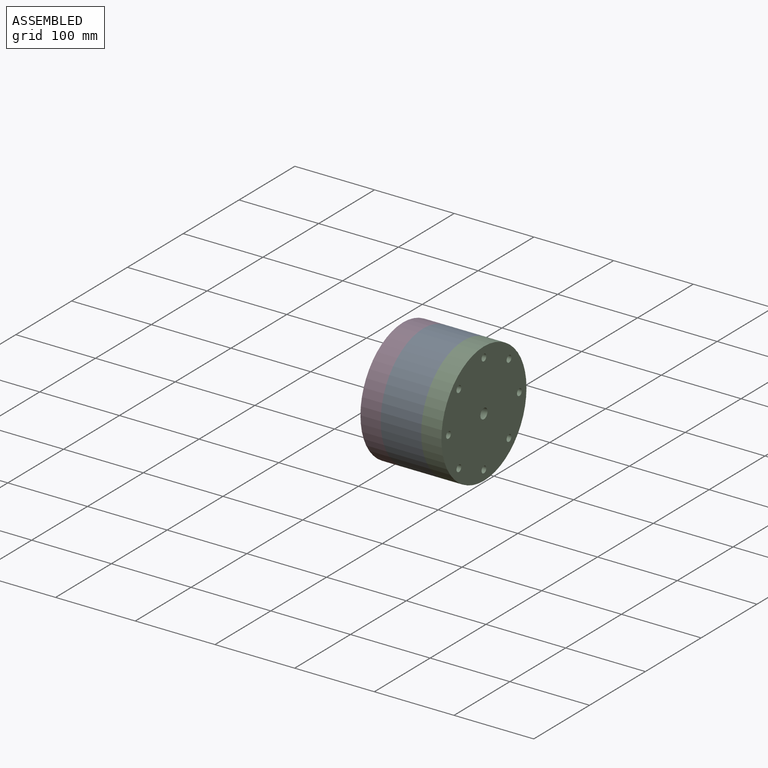
[diagram: assembled view]
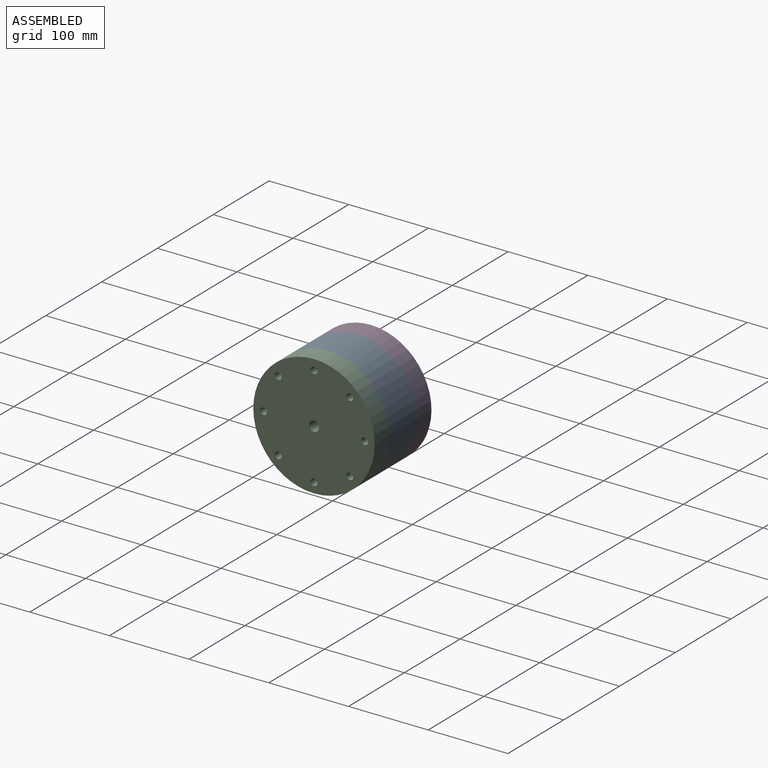
[diagram: assembled view, second angle]
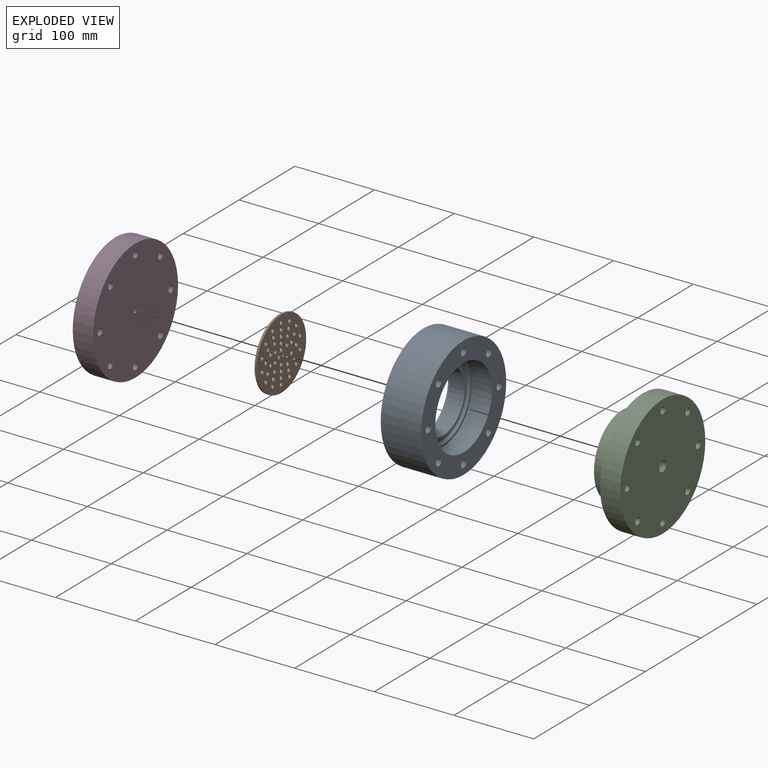
[diagram: exploded view]
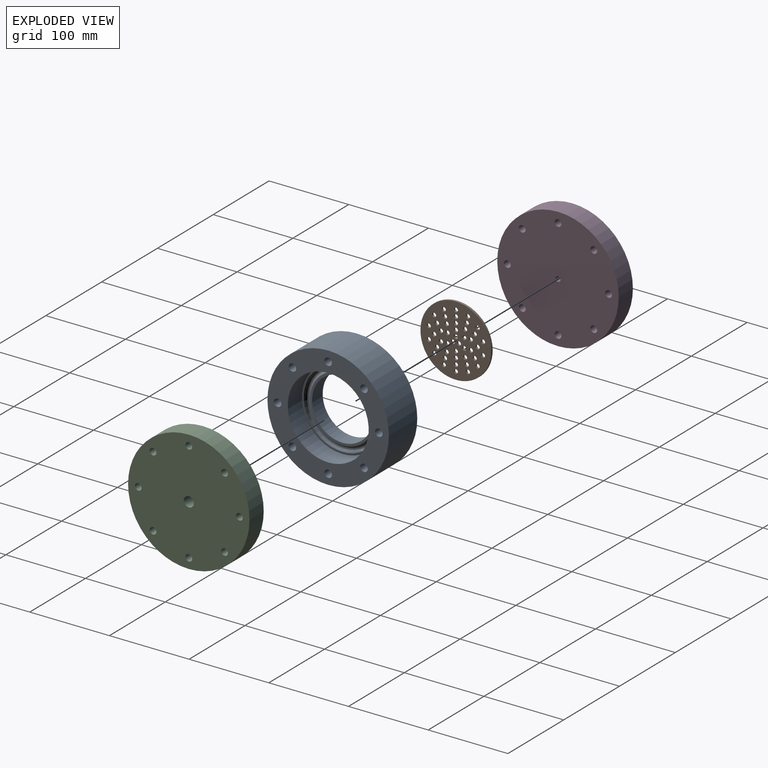
[diagram: exploded view, second angle]
ASSEMBLY  parts=4 mates=8
PART A: 28 faces, bbox 50.8x152.4x152.4 mm
  f0: plane 98.54x98.54mm, normal (-1,0,0), area 1418.4mm2, adj f4,f26
  f1: plane 81.39x81.39mm, normal (1,0,0), area 641.9mm2, adj f6,f13
  f2: cylinder r=76.2mm len=152.4mm, axis (-1,0,0), area 24322mm2, adj f3,f9
  f3: plane 152.4x152.4mm, normal (-1,0,0), area 7345.2mm2, adj f2,f15,f16,f17,f18,f19,f20,f21
  f4: cone r=44.45mm half-angle=30deg, axis (1,0,0), area 2132.3mm2, adj f0,f5
  f5: plane 96.23x96.23mm, normal (-1,0,0), area 2712.9mm2, adj f4,f6
  f6: cylinder r=38.1mm len=76.2mm, axis (-1,0,0), area 4560.4mm2, adj f1,f5
  f7: plane 101.6x101.6mm, normal (1,0,0), area 613mm2, adj f8,f14
  f8: cylinder r=50.8mm len=101.6mm, axis (-1,0,0), area 8107.3mm2, adj f7,f9
  f9: plane 152.4x152.4mm, normal (1,0,0), area 9579.5mm2, adj f2,f8,f15,f16,f17,f18,f19,f20
  f10: plane 90.17x90.17mm, normal (1,0,0), area 178.6mm2, adj f11,f12
  f11: torus R=44.45mm, axis (1,0,0), area 961.7mm2, adj f10,f13
  f12: torus R=45.09mm, axis (1,0,0), area 1043.5mm2, adj f10,f14
  f13: torus R=40.69mm, axis (1,0,0), area 464.1mm2, adj f1,f11
  f14: torus R=48.84mm, axis (-1,0,0), area 538.5mm2, adj f7,f12
  f15: cylinder r=4.7mm len=50.8mm, axis (-1,0,0), area 1499.5mm2, adj f3,f9
  f16: cylinder r=4.7mm len=50.8mm, axis (-1,0,0), area 1499.5mm2, adj f3,f9
  f17: cylinder r=4.7mm len=50.8mm, axis (-1,0,0), area 1499.5mm2, adj f3,f9
  f18: cylinder r=4.7mm len=50.8mm, axis (-1,0,0), area 1499.5mm2, adj f3,f9
  f19: cylinder r=4.7mm len=50.8mm, axis (-1,0,0), area 1499.5mm2, adj f3,f9
  f20: cylinder r=4.7mm len=50.8mm, axis (-1,0,0), area 1499.5mm2, adj f3,f9
  f21: cylinder r=4.7mm len=50.8mm, axis (-1,0,0), area 1499.5mm2, adj f3,f9
  f22: cylinder r=4.7mm len=50.8mm, axis (-1,0,0), area 1499.5mm2, adj f3,f9
  f23: plane 107.24x107.24mm, normal (-1,0,0), area 198.8mm2, adj f24,f25
  f24: torus R=53.02mm, axis (-1,0,0), area 1153.8mm2, adj f23,f26
  f25: torus R=53.62mm, axis (-1,0,0), area 1234.6mm2, adj f23,f27
  f26: torus R=49.27mm, axis (-1,0,0), area 560.2mm2, adj f0,f24
  f27: torus R=57.37mm, axis (1,0,0), area 634mm2, adj f3,f25
PART B: 48 faces, bbox 2.5x88.9x88.9 mm
  f0: plane 88.9x88.9mm, normal (-1,0,0), area 5295.1mm2, adj f2,f3,f4,f5,f6,f7,f8,f9
  f1: plane 88.9x88.9mm, normal (1,0,0), area 5295.1mm2, adj f2,f3,f4,f5,f6,f7,f8,f9
  f2: cylinder r=44.45mm len=88.9mm, axis (-1,0,0), area 709.4mm2, adj f0,f1
  f3: cylinder r=2.54mm len=5.08mm, axis (-1,0,0), area 40.5mm2, adj f0,f1
  f4: cylinder r=2.54mm len=5.08mm, axis (-1,0,0), area 40.5mm2, adj f0,f1
  f5: cylinder r=2.54mm len=5.08mm, axis (-1,0,0), area 40.5mm2, adj f0,f1
  f6: cylinder r=2.54mm len=5.08mm, axis (-1,0,0), area 40.5mm2, adj f0,f1
  f7: cylinder r=2.54mm len=5.08mm, axis (-1,0,0), area 40.5mm2, adj f0,f1
  f8: cylinder r=2.54mm len=5.08mm, axis (-1,0,0), area 40.5mm2, adj f0,f1
  f9: cylinder r=2.54mm len=5.08mm, axis (-1,0,0), area 40.5mm2, adj f0,f1
  f10: cylinder r=2.54mm len=5.08mm, axis (-1,0,0), area 40.5mm2, adj f0,f1
  f11: cylinder r=2.54mm len=5.08mm, axis (-1,0,0), area 40.5mm2, adj f0,f1
  f12: cylinder r=2.54mm len=5.08mm, axis (-1,0,0), area 40.5mm2, adj f0,f1
  f13: cylinder r=2.54mm len=5.08mm, axis (-1,0,0), area 40.5mm2, adj f0,f1
  f14: cylinder r=2.54mm len=5.08mm, axis (-1,0,0), area 40.5mm2, adj f0,f1
  f15: cylinder r=2.54mm len=5.08mm, axis (-1,0,0), area 40.5mm2, adj f0,f1
  f16: cylinder r=2.54mm len=5.08mm, axis (-1,0,0), area 40.5mm2, adj f0,f1
  f17: cylinder r=2.54mm len=5.08mm, axis (-1,0,0), area 40.5mm2, adj f0,f1
  f18: cylinder r=2.54mm len=5.08mm, axis (-1,0,0), area 40.5mm2, adj f0,f1
  f19: cylinder r=2.54mm len=5.08mm, axis (-1,0,0), area 40.5mm2, adj f0,f1
  f20: cylinder r=2.54mm len=5.08mm, axis (-1,0,0), area 40.5mm2, adj f0,f1
  f21: cylinder r=2.54mm len=5.08mm, axis (-1,0,0), area 40.5mm2, adj f0,f1
  f22: cylinder r=2.54mm len=5.08mm, axis (-1,0,0), area 40.5mm2, adj f0,f1
  f23: cylinder r=2.54mm len=5.08mm, axis (-1,0,0), area 40.5mm2, adj f0,f1
  f24: cylinder r=2.54mm len=5.08mm, axis (-1,0,0), area 40.5mm2, adj f0,f1
  f25: cylinder r=2.54mm len=5.08mm, axis (-1,0,0), area 40.5mm2, adj f0,f1
  f26: cylinder r=2.54mm len=5.08mm, axis (-1,0,0), area 40.5mm2, adj f0,f1
  f27: cylinder r=2.54mm len=5.08mm, axis (-1,0,0), area 40.5mm2, adj f0,f1
  f28: cylinder r=2.54mm len=5.08mm, axis (-1,0,0), area 40.5mm2, adj f0,f1
  f29: cylinder r=2.54mm len=5.08mm, axis (-1,0,0), area 40.5mm2, adj f0,f1
  f30: cylinder r=2.54mm len=5.08mm, axis (-1,0,0), area 40.5mm2, adj f0,f1
  f31: cylinder r=2.54mm len=5.08mm, axis (-1,0,0), area 40.5mm2, adj f0,f1
  f32: cylinder r=2.54mm len=5.08mm, axis (-1,0,0), area 40.5mm2, adj f0,f1
  f33: cylinder r=2.54mm len=5.08mm, axis (-1,0,0), area 40.5mm2, adj f0,f1
  f34: cylinder r=2.54mm len=5.08mm, axis (-1,0,0), area 40.5mm2, adj f0,f1
  f35: cylinder r=2.54mm len=5.08mm, axis (-1,0,0), area 40.5mm2, adj f0,f1
  f36: cylinder r=2.54mm len=5.08mm, axis (-1,0,0), area 40.5mm2, adj f0,f1
  f37: cylinder r=2.54mm len=5.08mm, axis (-1,0,0), area 40.5mm2, adj f0,f1
  f38: cylinder r=2.54mm len=5.08mm, axis (-1,0,0), area 40.5mm2, adj f0,f1
  f39: cylinder r=2.54mm len=5.08mm, axis (-1,0,0), area 40.5mm2, adj f0,f1
  f40: cylinder r=2.54mm len=5.08mm, axis (-1,0,0), area 40.5mm2, adj f0,f1
  f41: cylinder r=2.54mm len=5.08mm, axis (-1,0,0), area 40.5mm2, adj f0,f1
  f42: cylinder r=2.54mm len=5.08mm, axis (-1,0,0), area 40.5mm2, adj f0,f1
  f43: cylinder r=2.54mm len=5.08mm, axis (-1,0,0), area 40.5mm2, adj f0,f1
  f44: cylinder r=2.54mm len=5.08mm, axis (-1,0,0), area 40.5mm2, adj f0,f1
  f45: cylinder r=2.54mm len=5.08mm, axis (-1,0,0), area 40.5mm2, adj f0,f1
  f46: cylinder r=2.54mm len=5.08mm, axis (-1,0,0), area 40.5mm2, adj f0,f1
  f47: cylinder r=2.54mm len=5.08mm, axis (-1,0,0), area 40.5mm2, adj f0,f1
PART C: 17 faces, bbox 50.8x152.4x152.4 mm
  f0: cylinder r=50.8mm len=101.6mm, axis (-1,0,0), area 8107.3mm2, adj f2,f7
  f1: cone r=37.59mm half-angle=74.2deg, axis (-1,0,0), area 4605.5mm2, adj f2,f5
  f2: plane 101.6x101.6mm, normal (-1,0,0), area 3667.8mm2, adj f0,f1
  f3: cylinder r=6.35mm len=15.24mm, axis (1,0,0), area 608mm2, adj f4,f8
  f4: plane 12.7x12.7mm, normal (1,0,0), area 118.8mm2, adj f3,f5
  f5: cylinder r=1.59mm len=25.38mm, axis (1,0,0), area 253.1mm2, adj f1,f4
  f6: cylinder r=76.2mm len=152.4mm, axis (1,0,0), area 12161mm2, adj f7,f8
  f7: plane 152.4x152.4mm, normal (-1,0,0), area 9681.9mm2, adj f0,f6,f9,f10,f11,f12,f13,f14
  f8: plane 152.4x152.4mm, normal (1,0,0), area 17662.6mm2, adj f3,f6,f9,f10,f11,f12,f13,f14
  f9: cylinder r=4.24mm len=25.4mm, axis (1,0,0), area 677mm2, adj f7,f8
  f10: cylinder r=4.24mm len=25.4mm, axis (1,0,0), area 677mm2, adj f7,f8
  f11: cylinder r=4.24mm len=25.4mm, axis (1,0,0), area 677mm2, adj f7,f8
  f12: cylinder r=4.24mm len=25.4mm, axis (1,0,0), area 677mm2, adj f7,f8
  f13: cylinder r=4.24mm len=25.4mm, axis (1,0,0), area 677mm2, adj f7,f8
  f14: cylinder r=4.24mm len=25.4mm, axis (1,0,0), area 677mm2, adj f7,f8
  f15: cylinder r=4.24mm len=25.4mm, axis (1,0,0), area 677mm2, adj f7,f8
  f16: cylinder r=4.24mm len=25.4mm, axis (1,0,0), area 677mm2, adj f7,f8
PART D: 13 faces, bbox 38x152.4x152.4 mm
  f0: plane 152.4x152.4mm, normal (1,0,0), area 17757.6mm2, adj f1,f4,f5,f6,f7,f8,f9,f10
  f1: cylinder r=76.2mm len=152.4mm, axis (1,0,0), area 12161mm2, adj f0,f2
  f2: plane 152.4x152.4mm, normal (-1,0,0), area 9681.9mm2, adj f1,f3,f5,f6,f7,f8,f9,f10
  f3: revolved ~101.6x101.6mm, area 17126mm2, adj f2,f4
  f4: cylinder r=3.17mm len=38.01mm, axis (1,0,0), area 758.3mm2, adj f0,f3
  f5: cylinder r=4.24mm len=25.4mm, axis (-1,0,0), area 677mm2, adj f0,f2
  f6: cylinder r=4.24mm len=25.4mm, axis (-1,0,0), area 677mm2, adj f0,f2
  f7: cylinder r=4.24mm len=25.4mm, axis (-1,0,0), area 677mm2, adj f0,f2
  f8: cylinder r=4.24mm len=25.4mm, axis (-1,0,0), area 677mm2, adj f0,f2
  f9: cylinder r=4.24mm len=25.4mm, axis (-1,0,0), area 677mm2, adj f0,f2
  f10: cylinder r=4.24mm len=25.4mm, axis (-1,0,0), area 677mm2, adj f0,f2
  f11: cylinder r=4.24mm len=25.4mm, axis (-1,0,0), area 677mm2, adj f0,f2
  f12: cylinder r=4.24mm len=25.4mm, axis (-1,0,0), area 677mm2, adj f0,f2
PLACE A t=(-73.66,-21.55,9.47)mm fixed
PLACE B t=(-73.66,-21.55,9.47)mm
PLACE C rot(axis=(1,0,0),90deg) t=(-67.31,-21.55,9.47)mm
PLACE D t=(-73.66,-21.55,9.47)mm
MATE cylindrical D.f1 <-> A.f2  axis (1,0,0) through (-73.66,-21.55,9.47)mm
MATE cylindrical D.f6 <-> A.f16  axis (1,0,0) through (-73.66,41.95,9.47)mm
MATE fastened D.f1 <-> A.f2  axis (1,0,0) through (-73.66,-21.55,9.47)mm
MATE fastened A.f2 <-> C.f6  axis (1,0,0) through (-48.26,-21.55,9.47)mm
MATE fastened B.f2 <-> D.f1  axis (-1,0,0) through (-73.66,-21.55,9.47)mm
MATE cylindrical A.f2 <-> C.f0  axis (1,0,0) through (-22.86,-21.55,9.47)mm
MATE cylindrical B.f2 <-> D.f1  axis (1,0,0) through (-71.12,-21.55,9.47)mm
MATE cylindrical D.f10 <-> A.f20  axis (1,0,0) through (-73.66,-85.05,9.47)mm
